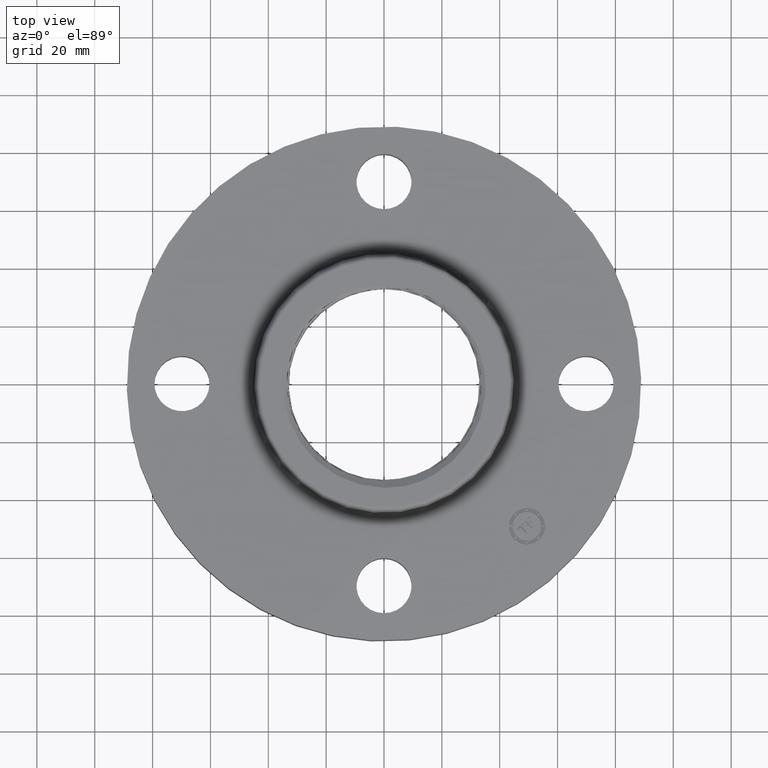
[diagram: clean part render]
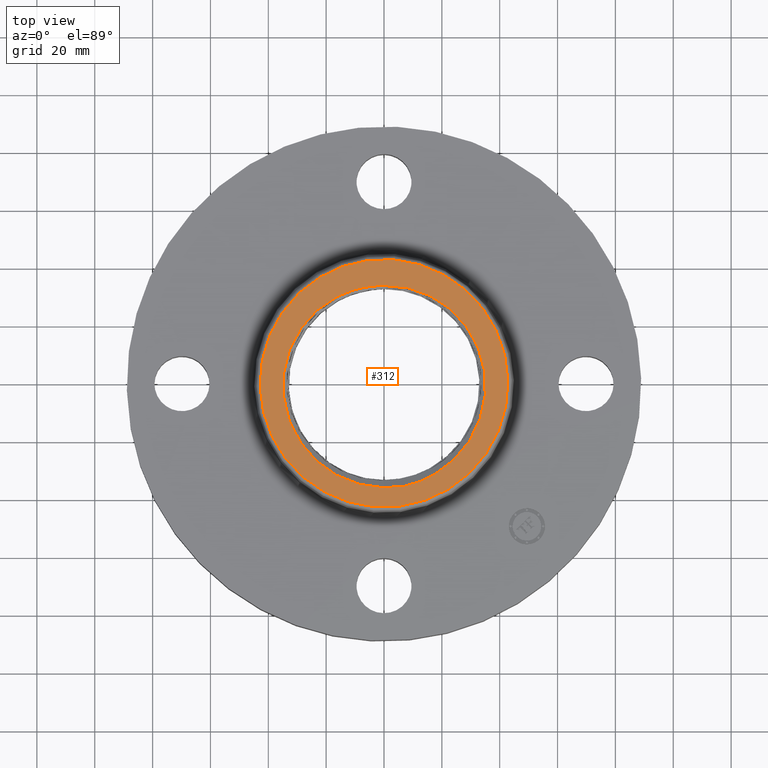
[diagram: same view with one face highlighted and labeled with its STEP entity id]
A machine part, top view. The second image highlights one B-rep face of the part: STEP entity #312.
In plain terms, the highlighted planar face has unit normal (0, 0, -1).
Its self-contained STEP definition (entity closure, byte-faithful):
#174=AXIS2_PLACEMENT_3D('Plane Axis2P3D',#171,#172,#173) ;
#178=AXIS2_PLACEMENT_3D('Circle Axis2P3D',#176,#177,$) ;
#187=AXIS2_PLACEMENT_3D('Circle Axis2P3D',#185,#186,$) ;
#196=AXIS2_PLACEMENT_3D('Circle Axis2P3D',#194,#195,$) ;
#171=CARTESIAN_POINT('Axis2P3D Location',(0.,1.68557227696,1.06)) ;
#176=CARTESIAN_POINT('Axis2P3D Location',(0.,0.,1.06)) ;
#180=CARTESIAN_POINT('Vertex',(0.808106396737,1.47922883707,1.06)) ;
#182=CARTESIAN_POINT('Vertex',(-0.808106396737,-1.47922883707,1.06)) ;
#185=CARTESIAN_POINT('Axis2P3D Location',(0.,0.,1.06)) ;
#194=CARTESIAN_POINT('Axis2P3D Location',(-2.79741234551E-016,0.,1.06)) ;
#198=CARTESIAN_POINT('Vertex',(-0.121641748804,1.32492898946,1.05999997691)) ;
#200=CARTESIAN_POINT('Vertex',(-0.00911456618055,1.33047001827,1.06000000894)) ;
#204=CARTESIAN_POINT('Control Point',(8.47151953675E-007,1.33073100438,1.06)) ;
#205=CARTESIAN_POINT('Control Point',(-0.00182248876876,1.33068505117,1.06)) ;
#206=CARTESIAN_POINT('Control Point',(-0.00364570435942,1.33063597415,1.06)) ;
#207=CARTESIAN_POINT('Control Point',(-0.00546880106443,1.33058377335,1.06)) ;
#208=CARTESIAN_POINT('Control Point',(-0.00729175453253,1.33052844958,1.06)) ;
#209=CARTESIAN_POINT('Control Point',(-0.00911456621147,1.33047000293,1.06)) ;
#210=CARTESIAN_POINT('Vertex',(8.47151953696E-007,1.33073100438,1.06)) ;
#214=CARTESIAN_POINT('Control Point',(0.680461110008,-1.24557737422,1.06)) ;
#215=CARTESIAN_POINT('Control Point',(0.774113154794,-1.19150403495,1.06)) ;
#216=CARTESIAN_POINT('Control Point',(0.862509447865,-1.12856901142,1.06)) ;
#217=CARTESIAN_POINT('Control Point',(0.944519627193,-1.0574413619,1.06)) ;
#218=CARTESIAN_POINT('Control Point',(1.09377431437,-0.900577318953,1.06)) ;
#219=CARTESIAN_POINT('Control Point',(1.21030366595,-0.718669772104,1.06)) ;
#220=CARTESIAN_POINT('Control Point',(1.2595930759,-0.622489121741,1.06)) ;
#221=CARTESIAN_POINT('Control Point',(1.31631954786,-0.479348320945,1.06)) ;
#222=CARTESIAN_POINT('Control Point',(1.35277794027,-0.330601855258,1.06)) ;
#223=CARTESIAN_POINT('Control Point',(1.36186323264,-0.285575813529,1.06)) ;
#224=CARTESIAN_POINT('Control Point',(1.38591528282,-0.13444369832,1.06)) ;
#225=CARTESIAN_POINT('Control Point',(1.38904572839,0.0188563277704,1.06)) ;
#226=CARTESIAN_POINT('Control Point',(1.38084909086,0.125898034114,1.06)) ;
#227=CARTESIAN_POINT('Control Point',(1.34392373703,0.336840655754,1.06)) ;
#228=CARTESIAN_POINT('Control Point',(1.26745682188,0.536195161766,1.06)) ;
#229=CARTESIAN_POINT('Control Point',(1.2196857905,0.63175943211,1.06)) ;
#230=CARTESIAN_POINT('Control Point',(1.10633905241,0.812216643135,1.06)) ;
#231=CARTESIAN_POINT('Control Point',(0.960730542444,0.96707484432,1.06)) ;
#232=CARTESIAN_POINT('Control Point',(0.880656245551,1.03709017737,1.06)) ;
#233=CARTESIAN_POINT('Control Point',(0.708133770727,1.16042553459,1.06)) ;
#234=CARTESIAN_POINT('Control Point',(0.515390978565,1.24784588529,1.06)) ;
#235=CARTESIAN_POINT('Control Point',(0.415157938644,1.28190808297,1.06)) ;
#236=CARTESIAN_POINT('Control Point',(0.271394660759,1.31544902373,1.06)) ;
#237=CARTESIAN_POINT('Control Point',(0.12520019501,1.32897940483,1.06)) ;
#238=CARTESIAN_POINT('Control Point',(0.0834626113079,1.33119904893,1.06)) ;
#239=CARTESIAN_POINT('Control Point',(0.0417002677482,1.33178194743,1.06)) ;
#240=CARTESIAN_POINT('Control Point',(8.47151954413E-007,1.33073100438,1.06)) ;
#241=CARTESIAN_POINT('Vertex',(0.680461110008,-1.24557737422,1.06)) ;
#245=CARTESIAN_POINT('Control Point',(0.289777463885,-1.39956527919,1.06)) ;
#246=CARTESIAN_POINT('Control Point',(0.372037875347,-1.38051046203,1.06)) ;
#247=CARTESIAN_POINT('Control Point',(0.452820487494,-1.35539542424,1.06)) ;
#248=CARTESIAN_POINT('Control Point',(0.531529416711,-1.32436504371,1.06)) ;
#249=CARTESIAN_POINT('Control Point',(0.607586542089,-1.28765409812,1.06)) ;
#250=CARTESIAN_POINT('Control Point',(0.680461110008,-1.24557737422,1.06)) ;
#251=CARTESIAN_POINT('Vertex',(0.289777463885,-1.39956527919,1.06)) ;
#255=CARTESIAN_POINT('Control Point',(0.289777463885,-1.39956527919,1.06)) ;
#256=CARTESIAN_POINT('Control Point',(0.232443945298,-1.41017217879,1.06)) ;
#257=CARTESIAN_POINT('Control Point',(0.174598645223,-1.41784934706,1.06)) ;
#258=CARTESIAN_POINT('Control Point',(0.116440551245,-1.42256174526,1.06)) ;
#259=CARTESIAN_POINT('Control Point',(0.0581730290033,-1.42429458098,1.06)) ;
#260=CARTESIAN_POINT('Control Point',(-9.87387139172E-007,-1.42305405331,1.06)) ;
#261=CARTESIAN_POINT('Vertex',(-9.8738713926E-007,-1.42305405331,1.06)) ;
#265=CARTESIAN_POINT('Control Point',(-9.87387136637E-007,-1.42305405331,1.06)) ;
#266=CARTESIAN_POINT('Control Point',(-0.108282443583,-1.42074501278,1.06)) ;
#267=CARTESIAN_POINT('Control Point',(-0.216240006254,-1.40813446987,1.06)) ;
#268=CARTESIAN_POINT('Control Point',(-0.32253565851,-1.38526943908,1.06)) ;
#269=CARTESIAN_POINT('Control Point',(-0.529272359759,-1.31961108946,1.06)) ;
#270=CARTESIAN_POINT('Control Point',(-0.719355269693,-1.21625773182,1.06)) ;
#271=CARTESIAN_POINT('Control Point',(-0.809072637815,-1.15566313796,1.06)) ;
#272=CARTESIAN_POINT('Control Point',(-0.975644840916,-1.01818161015,1.06)) ;
#273=CARTESIAN_POINT('Control Point',(-1.11276045426,-0.851910102137,1.06)) ;
#274=CARTESIAN_POINT('Control Point',(-1.17305749964,-0.76248606432,1.06)) ;
#275=CARTESIAN_POINT('Control Point',(-1.27556507237,-0.573416495021,1.06)) ;
#276=CARTESIAN_POINT('Control Point',(-1.33998674617,-0.368597733256,1.06)) ;
#277=CARTESIAN_POINT('Control Point',(-1.36216103408,-0.26350565159,1.06)) ;
#278=CARTESIAN_POINT('Control Point',(-1.38080854164,-0.0961980715651,1.06)) ;
#279=CARTESIAN_POINT('Control Point',(-1.37399221507,0.0712845632183,1.06)) ;
#280=CARTESIAN_POINT('Control Point',(-1.36814829416,0.131930828611,1.06)) ;
#281=CARTESIAN_POINT('Control Point',(-1.34748648311,0.267279876005,1.06)) ;
#282=CARTESIAN_POINT('Control Point',(-1.31018771933,0.398950190379,1.06)) ;
#283=CARTESIAN_POINT('Control Point',(-1.28444073678,0.470476900107,1.06)) ;
#284=CARTESIAN_POINT('Control Point',(-1.2109963349,0.637162331486,1.06)) ;
#285=CARTESIAN_POINT('Control Point',(-1.11091807578,0.7894437641,1.06)) ;
#286=CARTESIAN_POINT('Control Point',(-1.04410803147,0.872203222115,1.06)) ;
#287=CARTESIAN_POINT('Control Point',(-0.928095933945,0.990181664917,1.06)) ;
#288=CARTESIAN_POINT('Control Point',(-0.796206487155,1.088753488,1.06)) ;
#289=CARTESIAN_POINT('Control Point',(-0.747002947236,1.12148506616,1.06)) ;
#290=CARTESIAN_POINT('Control Point',(-0.696135293556,1.15143714821,1.06)) ;
#291=CARTESIAN_POINT('Control Point',(-0.64381579003,1.17850292307,1.06)) ;
#292=CARTESIAN_POINT('Vertex',(-0.64381579003,1.17850292307,1.06)) ;
#296=CARTESIAN_POINT('Control Point',(-0.64381579003,1.17850292307,1.06)) ;
#297=CARTESIAN_POINT('Control Point',(-0.546579670705,1.22880483219,1.06)) ;
#298=CARTESIAN_POINT('Control Point',(-0.444329236273,1.26913713357,1.06)) ;
#299=CARTESIAN_POINT('Control Point',(-0.338417399375,1.2988178045,1.06)) ;
#300=CARTESIAN_POINT('Control Point',(-0.230348987605,1.31744350995,1.06)) ;
#301=CARTESIAN_POINT('Control Point',(-0.121641735467,1.32492894463,1.06)) ;
#172=DIRECTION('Axis2P3D Direction',(0.,0.,-0.0393700787402)) ;
#173=DIRECTION('Axis2P3D XDirection',(0.0393700787402,0.,0.)) ;
#177=DIRECTION('Axis2P3D Direction',(0.,0.,-0.0393700787402)) ;
#186=DIRECTION('Axis2P3D Direction',(0.,0.,-0.0393700787402)) ;
#195=DIRECTION('Axis2P3D Direction',(0.,0.,-0.0393700787402)) ;
#191=ORIENTED_EDGE('',*,*,#184,.F.) ;
#192=ORIENTED_EDGE('',*,*,#189,.F.) ;
#304=ORIENTED_EDGE('',*,*,#202,.T.) ;
#305=ORIENTED_EDGE('',*,*,#212,.F.) ;
#306=ORIENTED_EDGE('',*,*,#243,.F.) ;
#307=ORIENTED_EDGE('',*,*,#253,.F.) ;
#308=ORIENTED_EDGE('',*,*,#263,.T.) ;
#309=ORIENTED_EDGE('',*,*,#294,.T.) ;
#310=ORIENTED_EDGE('',*,*,#302,.T.) ;
#311=FACE_BOUND('',#303,.T.) ;
#312=ADVANCED_FACE('PartBody',(#193,#311),#175,.F.) ;
#203=B_SPLINE_CURVE_WITH_KNOTS('',5,(#204,#205,#206,#207,#208,#209),.UNSPECIFIED.,.F.,.U.,(6,6),(0.,0.333988931496),.UNSPECIFIED.) ;
#213=B_SPLINE_CURVE_WITH_KNOTS('',5,(#214,#215,#216,#217,#218,#219,#220,#221,#222,#223,#224,#225,#226,#227,#228,#229,#230,#231,#232,#233,#234,#235,#236,#237,#238,#239,#240),.UNSPECIFIED.,.F.,.U.,(6,3,3,3,3,3,3,3,6),(0.,19.1602435769,38.3223130096,46.5341720597,65.7023106829,84.8916033712,104.0930458,123.281181008,130.919458064),.UNSPECIFIED.) ;
#244=B_SPLINE_CURVE_WITH_KNOTS('',5,(#245,#246,#247,#248,#249,#250),.UNSPECIFIED.,.F.,.U.,(6,6),(0.,14.9093858538),.UNSPECIFIED.) ;
#254=B_SPLINE_CURVE_WITH_KNOTS('',5,(#255,#256,#257,#258,#259,#260),.UNSPECIFIED.,.F.,.U.,(6,6),(0.,10.295097888),.UNSPECIFIED.) ;
#264=B_SPLINE_CURVE_WITH_KNOTS('',5,(#265,#266,#267,#268,#269,#270,#271,#272,#273,#274,#275,#276,#277,#278,#279,#280,#281,#282,#283,#284,#285,#286,#287,#288,#289,#290,#291),.UNSPECIFIED.,.F.,.U.,(6,3,3,3,3,3,3,3,6),(0.,19.1626478659,38.3401678573,57.5274561025,76.6984804115,87.6447083415,101.321918606,120.470742825,131.19234896),.UNSPECIFIED.) ;
#295=B_SPLINE_CURVE_WITH_KNOTS('',5,(#296,#297,#298,#299,#300,#301),.UNSPECIFIED.,.F.,.U.,(6,6),(0.,19.9261709884),.UNSPECIFIED.) ;
#179=CIRCLE('generated circle',#178,1.68557227696) ;
#188=CIRCLE('generated circle',#187,1.68557227696) ;
#197=CIRCLE('generated circle',#196,1.33050123791) ;
#184=EDGE_CURVE('',#181,#183,#179,.T.) ;
#189=EDGE_CURVE('',#183,#181,#188,.T.) ;
#202=EDGE_CURVE('',#199,#201,#197,.T.) ;
#212=EDGE_CURVE('',#211,#201,#203,.T.) ;
#243=EDGE_CURVE('',#242,#211,#213,.T.) ;
#253=EDGE_CURVE('',#252,#242,#244,.T.) ;
#263=EDGE_CURVE('',#252,#262,#254,.T.) ;
#294=EDGE_CURVE('',#262,#293,#264,.T.) ;
#302=EDGE_CURVE('',#293,#199,#295,.T.) ;
#190=EDGE_LOOP('',(#191,#192)) ;
#303=EDGE_LOOP('',(#304,#305,#306,#307,#308,#309,#310)) ;
#193=FACE_OUTER_BOUND('',#190,.T.) ;
#175=PLANE('',#174) ;
#181=VERTEX_POINT('',#180) ;
#183=VERTEX_POINT('',#182) ;
#199=VERTEX_POINT('',#198) ;
#201=VERTEX_POINT('',#200) ;
#211=VERTEX_POINT('',#210) ;
#242=VERTEX_POINT('',#241) ;
#252=VERTEX_POINT('',#251) ;
#262=VERTEX_POINT('',#261) ;
#293=VERTEX_POINT('',#292) ;